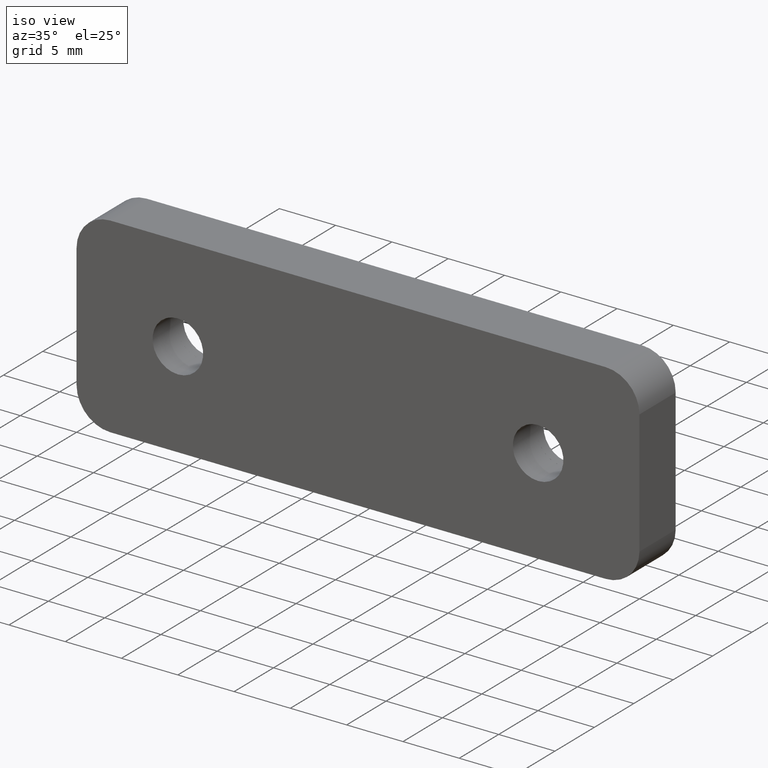
[diagram: clean part render]
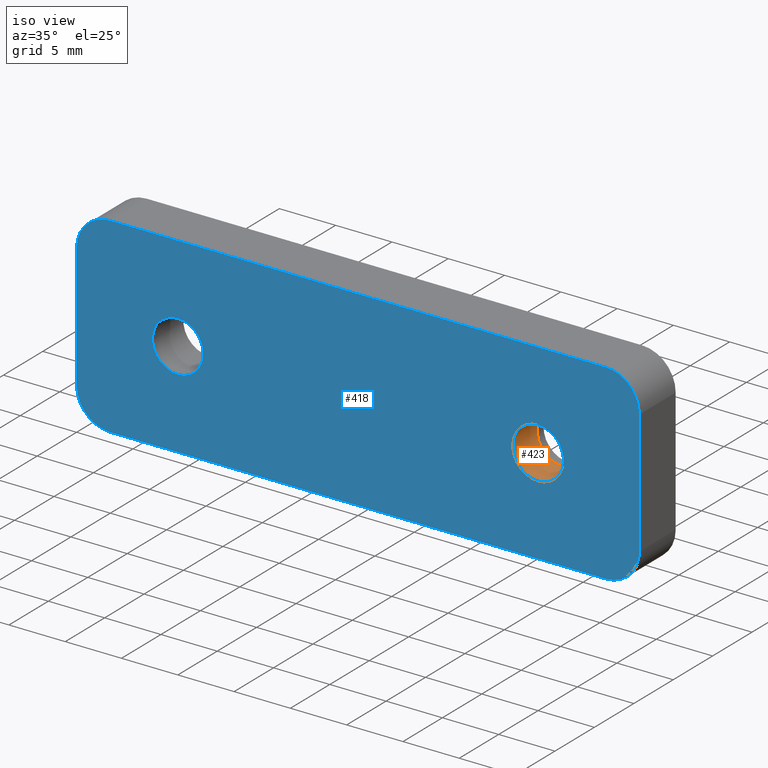
[diagram: same view with the hole feature highlighted: cylindrical wall and planar end face, labeled with their STEP entity ids]
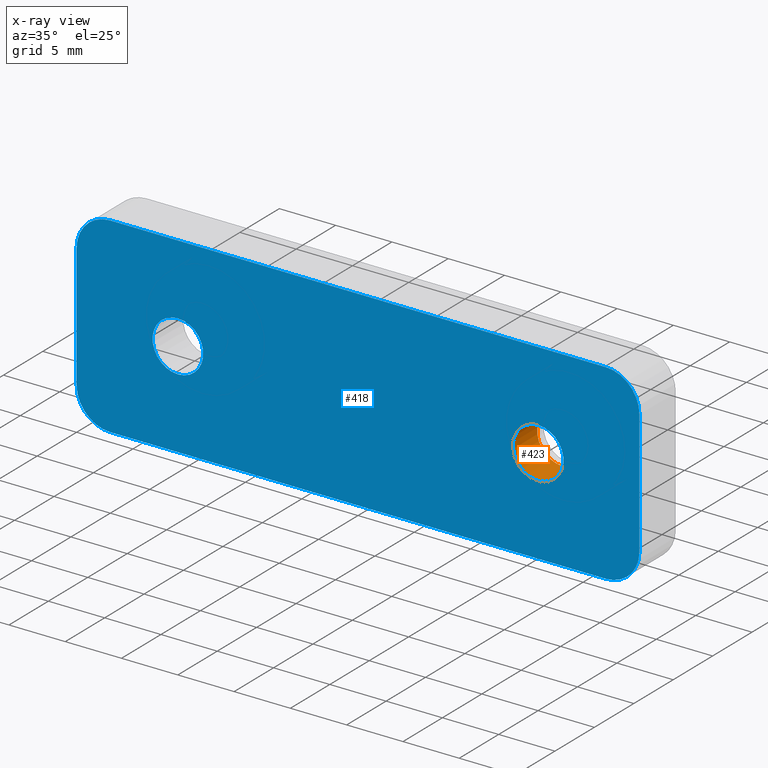
[diagram: x-ray of the same camera — body ghosted, the hole faces saturated]
A machine part, iso view. The highlighted faces form one hole feature of diameter 4.5 mm: the cylindrical wall (entity #423, orange) and its adjacent planar end face (entity #418, blue) — they share a circular edge in the B-rep.
The next image is the same camera in x-ray (body ghosted, the hole faces saturated) — the bore reads through the body.
Wall:
#41=CYLINDRICAL_SURFACE('',#469,2.25);
#55=FACE_BOUND('',#103,.T.);
#67=FACE_OUTER_BOUND('',#102,.T.);
#102=EDGE_LOOP('',(#326));
#103=EDGE_LOOP('',(#327));
#136=CIRCLE('',#454,2.25);
#147=CIRCLE('',#470,2.25);
#220=VERTEX_POINT('',#668);
#235=VERTEX_POINT('',#703);
#256=EDGE_CURVE('',#220,#220,#136,.T.);
#271=EDGE_CURVE('',#235,#235,#147,.T.);
#326=ORIENTED_EDGE('',*,*,#256,.F.);
#327=ORIENTED_EDGE('',*,*,#271,.T.);
#423=ADVANCED_FACE('',(#67,#55),#41,.F.);
#454=AXIS2_PLACEMENT_3D('',#669,#522,#523);
#469=AXIS2_PLACEMENT_3D('',#702,#556,#557);
#470=AXIS2_PLACEMENT_3D('',#704,#558,#559);
#522=DIRECTION('center_axis',(0.,1.,0.));
#523=DIRECTION('ref_axis',(0.,0.,1.));
#556=DIRECTION('center_axis',(0.,-1.,0.));
#557=DIRECTION('ref_axis',(0.,0.,-1.));
#558=DIRECTION('center_axis',(0.,1.,0.));
#559=DIRECTION('ref_axis',(0.,0.,1.));
#668=CARTESIAN_POINT('',(-16.,0.,2.25));
#669=CARTESIAN_POINT('Origin',(-16.,0.,0.));
#702=CARTESIAN_POINT('Origin',(-16.,6.6,0.));
#703=CARTESIAN_POINT('',(-16.,3.1,2.25));
#704=CARTESIAN_POINT('Origin',(-16.,3.1,0.));
End face:
#48=FACE_BOUND('',#91,.T.);
#49=FACE_BOUND('',#92,.T.);
#62=FACE_OUTER_BOUND('',#90,.T.);
#90=EDGE_LOOP('',(#300,#301,#302,#303,#304,#305,#306,#307));
#91=EDGE_LOOP('',(#308));
#92=EDGE_LOOP('',(#309));
#132=CIRCLE('',#450,3.);
#133=CIRCLE('',#451,3.);
#134=CIRCLE('',#452,3.);
#135=CIRCLE('',#453,3.);
#136=CIRCLE('',#454,2.25);
#137=CIRCLE('',#455,2.25);
#156=LINE('',#654,#184);
#157=LINE('',#658,#185);
#158=LINE('',#662,#186);
#159=LINE('',#666,#187);
#184=VECTOR('',#510,44.);
#185=VECTOR('',#513,11.);
#186=VECTOR('',#516,44.);
#187=VECTOR('',#519,11.);
#212=VERTEX_POINT('',#652);
#213=VERTEX_POINT('',#653);
#214=VERTEX_POINT('',#655);
#215=VERTEX_POINT('',#657);
#216=VERTEX_POINT('',#659);
#217=VERTEX_POINT('',#661);
#218=VERTEX_POINT('',#663);
#219=VERTEX_POINT('',#665);
#220=VERTEX_POINT('',#668);
#221=VERTEX_POINT('',#670);
#248=EDGE_CURVE('',#212,#213,#156,.T.);
#249=EDGE_CURVE('',#212,#214,#132,.T.);
#250=EDGE_CURVE('',#215,#214,#157,.T.);
#251=EDGE_CURVE('',#215,#216,#133,.T.);
#252=EDGE_CURVE('',#217,#216,#158,.T.);
#253=EDGE_CURVE('',#217,#218,#134,.T.);
#254=EDGE_CURVE('',#219,#218,#159,.T.);
#255=EDGE_CURVE('',#219,#213,#135,.T.);
#256=EDGE_CURVE('',#220,#220,#136,.T.);
#257=EDGE_CURVE('',#221,#221,#137,.T.);
#300=ORIENTED_EDGE('',*,*,#248,.F.);
#301=ORIENTED_EDGE('',*,*,#249,.T.);
#302=ORIENTED_EDGE('',*,*,#250,.F.);
#303=ORIENTED_EDGE('',*,*,#251,.T.);
#304=ORIENTED_EDGE('',*,*,#252,.F.);
#305=ORIENTED_EDGE('',*,*,#253,.T.);
#306=ORIENTED_EDGE('',*,*,#254,.F.);
#307=ORIENTED_EDGE('',*,*,#255,.T.);
#308=ORIENTED_EDGE('',*,*,#256,.T.);
#309=ORIENTED_EDGE('',*,*,#257,.T.);
#404=PLANE('',#449);
#418=ADVANCED_FACE('',(#62,#48,#49),#404,.T.);
#449=AXIS2_PLACEMENT_3D('',#651,#508,#509);
#450=AXIS2_PLACEMENT_3D('',#656,#511,#512);
#451=AXIS2_PLACEMENT_3D('',#660,#514,#515);
#452=AXIS2_PLACEMENT_3D('',#664,#517,#518);
#453=AXIS2_PLACEMENT_3D('',#667,#520,#521);
#454=AXIS2_PLACEMENT_3D('',#669,#522,#523);
#455=AXIS2_PLACEMENT_3D('',#671,#524,#525);
#508=DIRECTION('center_axis',(0.,-1.,0.));
#509=DIRECTION('ref_axis',(0.,0.,-1.));
#510=DIRECTION('',(1.,0.,0.));
#511=DIRECTION('center_axis',(0.,-1.,0.));
#512=DIRECTION('ref_axis',(0.,0.,1.));
#513=DIRECTION('',(2.04085114820801E-16,0.,1.));
#514=DIRECTION('center_axis',(0.,-1.,0.));
#515=DIRECTION('ref_axis',(1.15648231731787E-15,0.,1.));
#516=DIRECTION('',(-1.,0.,0.));
#517=DIRECTION('center_axis',(0.,-1.,0.));
#518=DIRECTION('ref_axis',(-1.15648231731787E-15,0.,1.));
#519=DIRECTION('',(-4.08170229641602E-16,0.,-1.));
#520=DIRECTION('center_axis',(0.,-1.,0.));
#521=DIRECTION('ref_axis',(-1.15648231731787E-15,0.,1.));
#522=DIRECTION('center_axis',(0.,1.,0.));
#523=DIRECTION('ref_axis',(0.,0.,1.));
#524=DIRECTION('center_axis',(0.,1.,0.));
#525=DIRECTION('ref_axis',(0.,0.,1.));
#651=CARTESIAN_POINT('Origin',(5.74236559691303,0.,-2.50182767338622));
#652=CARTESIAN_POINT('',(-22.,0.,8.5));
#653=CARTESIAN_POINT('',(22.,0.,8.5));
#654=CARTESIAN_POINT('',(-25.,0.,8.5));
#655=CARTESIAN_POINT('',(-25.,0.,5.5));
#656=CARTESIAN_POINT('Origin',(-22.,0.,5.5));
#657=CARTESIAN_POINT('',(-25.,0.,-5.5));
#658=CARTESIAN_POINT('',(-25.,0.,-8.5));
#659=CARTESIAN_POINT('',(-22.,0.,-8.5));
#660=CARTESIAN_POINT('Origin',(-22.,0.,-5.5));
#661=CARTESIAN_POINT('',(22.,0.,-8.5));
#662=CARTESIAN_POINT('',(-25.,0.,-8.5));
#663=CARTESIAN_POINT('',(25.,0.,-5.5));
#664=CARTESIAN_POINT('Origin',(22.,0.,-5.5));
#665=CARTESIAN_POINT('',(25.,0.,5.5));
#666=CARTESIAN_POINT('',(25.,0.,-8.5));
#667=CARTESIAN_POINT('Origin',(22.,0.,5.5));
#668=CARTESIAN_POINT('',(-16.,0.,2.25));
#669=CARTESIAN_POINT('Origin',(-16.,0.,0.));
#670=CARTESIAN_POINT('',(16.,0.,2.25));
#671=CARTESIAN_POINT('Origin',(16.,0.,-3.91886975727153E-15));